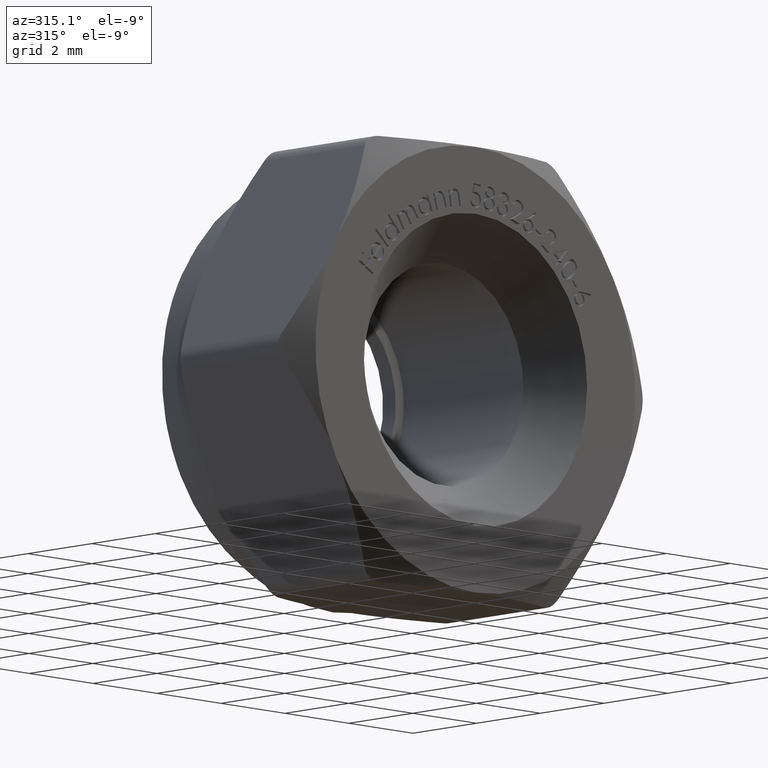
[diagram: clean part render]
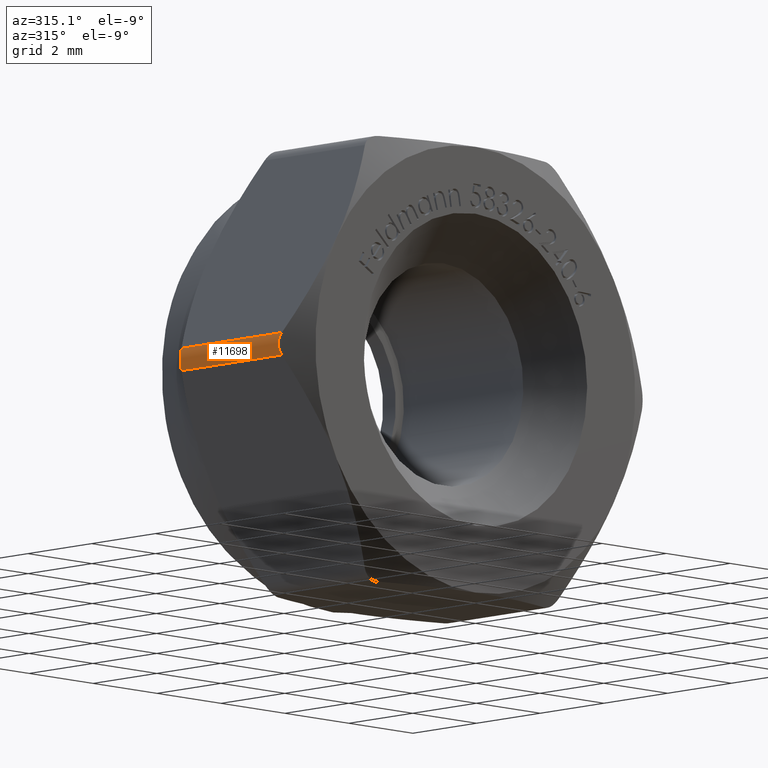
[diagram: same view with one face highlighted and labeled with its STEP entity id]
A machine part, auxiliary view. The second image highlights one B-rep face of the part: STEP entity #11698.
In plain terms, the highlighted cylindrical surface (edge-blend (fillet) strip) has radius 0.5 mm, axis along (0, -1, 0).
Its self-contained STEP definition (entity closure, byte-faithful):
#2471 = DIRECTION ( 'NONE',  ( 0.000000000000000000, 0.000000000000000000, -1.000000000000000000 ) ) ;
#2534 = CARTESIAN_POINT ( 'NONE',  ( -5.629165124592923064, 1.576857443475429665, -0.2500000000102665654 ) ) ;
#3097 = ORIENTED_EDGE ( 'NONE', *, *, #3422, .F. ) ;
#3103 = CARTESIAN_POINT ( 'NONE',  ( -5.629165124598849879, 2.000000000000000000, -0.2500000000000019429 ) ) ;
#3422 = EDGE_CURVE ( 'NONE', #13364, #6928, #12305, .T. ) ;
#3571 = ORIENTED_EDGE ( 'NONE', *, *, #12823, .F. ) ;
#4179 = CYLINDRICAL_SURFACE ( 'NONE', #6882, 0.5000000000000000000 ) ;
#4308 = CARTESIAN_POINT ( 'NONE',  ( -5.629165124592923064, 1.576857443475429665, -0.2500000000102665654 ) ) ;
#4463 = EDGE_CURVE ( 'NONE', #13789, #10271, #11534, .T. ) ;
#4844 = B_SPLINE_CURVE_WITH_KNOTS ( 'NONE', 3,
 ( #9991, #5399, #7867, #10147, #6620, #10267 ),
 .UNSPECIFIED., .F., .F.,
 ( 4, 2, 4 ),
 ( 1.143946889189166862E-14, 0.0002645522985932817570, 0.0005291045971751239885 ),
 .UNSPECIFIED. ) ;
#5399 = CARTESIAN_POINT ( 'NONE',  ( -5.671865796465565879, -1.550605983202929750, 0.1760402668095193413 ) ) ;
#6620 = CARTESIAN_POINT ( 'NONE',  ( -5.671884272523904258, -1.550594624513572883, -0.1760082653377791073 ) ) ;
#6696 = CARTESIAN_POINT ( 'NONE',  ( -5.671884272523904258, 1.550594624513572883, 0.1760082653377755268 ) ) ;
#6882 = AXIS2_PLACEMENT_3D ( 'NONE', #15881, #9774, #2471 ) ;
#6928 = VERTEX_POINT ( 'NONE', #10030 ) ;
#7495 = DIRECTION ( 'NONE',  ( 0.000000000000000000, -1.000000000000000000, 0.000000000000000000 ) ) ;
#7867 = CARTESIAN_POINT ( 'NONE',  ( -5.696069074695028434, -1.535949072760038892, 0.08889920073666923717 ) ) ;
#8058 = CARTESIAN_POINT ( 'NONE',  ( -5.629165124598850767, 1.576857443471785691, 0.2499999999999976685 ) ) ;
#8179 = ORIENTED_EDGE ( 'NONE', *, *, #4463, .F. ) ;
#8774 = CARTESIAN_POINT ( 'NONE',  ( -5.629165124598849879, -1.576857443471785913, -0.2500000000000014433 ) ) ;
#9226 = B_SPLINE_CURVE_WITH_KNOTS ( 'NONE', 3,
 ( #4308, #10456, #14137, #11682, #6696, #8058 ),
 .UNSPECIFIED., .F., .F.,
 ( 4, 2, 4 ),
 ( 1.143856750218410387E-14, 0.0002645522985932808897, 0.0005291045971751232296 ),
 .UNSPECIFIED. ) ;
#9774 = DIRECTION ( 'NONE',  ( 0.000000000000000000, -1.000000000000000000, 0.000000000000000000 ) ) ;
#9841 = EDGE_CURVE ( 'NONE', #10271, #13364, #9226, .T. ) ;
#9855 = CARTESIAN_POINT ( 'NONE',  ( -5.629165124598850767, 1.576857443471785691, 0.2499999999999976685 ) ) ;
#9991 = CARTESIAN_POINT ( 'NONE',  ( -5.629165124592923064, -1.576857443475430109, 0.2500000000102639564 ) ) ;
#10030 = CARTESIAN_POINT ( 'NONE',  ( -5.629165124592923064, -1.576857443475430109, 0.2500000000102639564 ) ) ;
#10147 = CARTESIAN_POINT ( 'NONE',  ( -5.696235328879588167, -1.535847965667584747, -0.08795915973061803339 ) ) ;
#10267 = CARTESIAN_POINT ( 'NONE',  ( -5.629165124598849879, -1.576857443471785913, -0.2500000000000014433 ) ) ;
#10271 = VERTEX_POINT ( 'NONE', #2534 ) ;
#10293 = FACE_OUTER_BOUND ( 'NONE', #14508, .T. ) ;
#10325 = DIRECTION ( 'NONE',  ( -0.000000000000000000, 1.000000000000000000, -0.000000000000000000 ) ) ;
#10456 = CARTESIAN_POINT ( 'NONE',  ( -5.671865796465565879, 1.550605983202929306, -0.1760402668095228107 ) ) ;
#11210 = CARTESIAN_POINT ( 'NONE',  ( -5.629165124598849879, 2.000000000000000000, 0.2499999999999985290 ) ) ;
#11534 = LINE ( 'NONE', #3103, #13442 ) ;
#11682 = CARTESIAN_POINT ( 'NONE',  ( -5.696235328879588167, 1.535847965667584747, 0.08795915973061378679 ) ) ;
#11698 = ADVANCED_FACE ( 'NONE', ( #10293 ), #4179, .T. ) ;
#12277 = ORIENTED_EDGE ( 'NONE', *, *, #9841, .F. ) ;
#12305 = LINE ( 'NONE', #11210, #14038 ) ;
#12823 = EDGE_CURVE ( 'NONE', #6928, #13789, #4844, .T. ) ;
#13364 = VERTEX_POINT ( 'NONE', #9855 ) ;
#13442 = VECTOR ( 'NONE', #10325, 1000.000000000000000 ) ;
#13789 = VERTEX_POINT ( 'NONE', #8774 ) ;
#14038 = VECTOR ( 'NONE', #7495, 1000.000000000000000 ) ;
#14137 = CARTESIAN_POINT ( 'NONE',  ( -5.696069074695028434, 1.535949072760039336, -0.08889920073667349765 ) ) ;
#14508 = EDGE_LOOP ( 'NONE', ( #12277, #8179, #3571, #3097 ) ) ;
#15881 = CARTESIAN_POINT ( 'NONE',  ( -5.196152422706630247, 2.000000000000000000, -1.734723475976807094E-15 ) ) ;